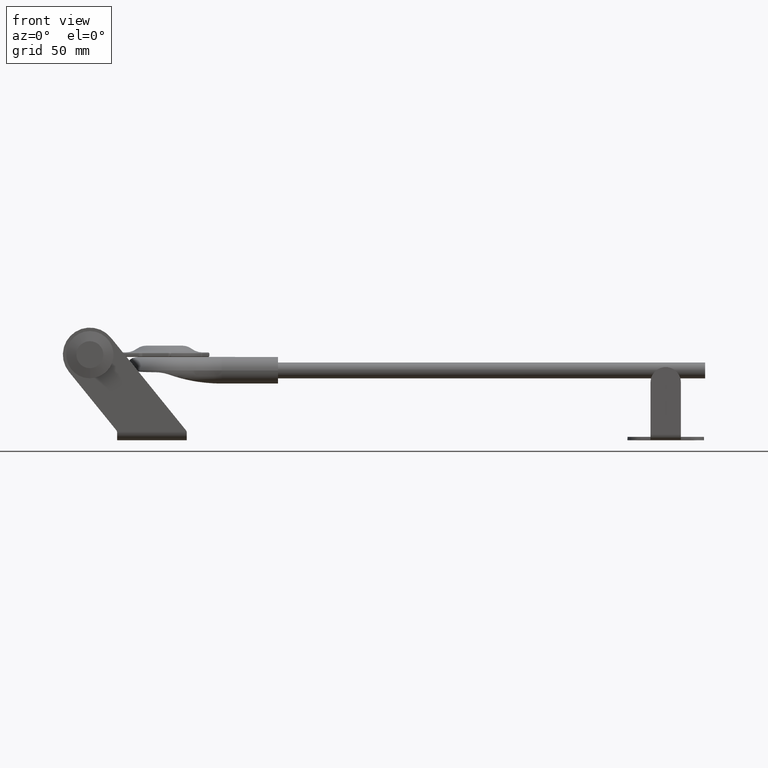
[diagram: clean part render]
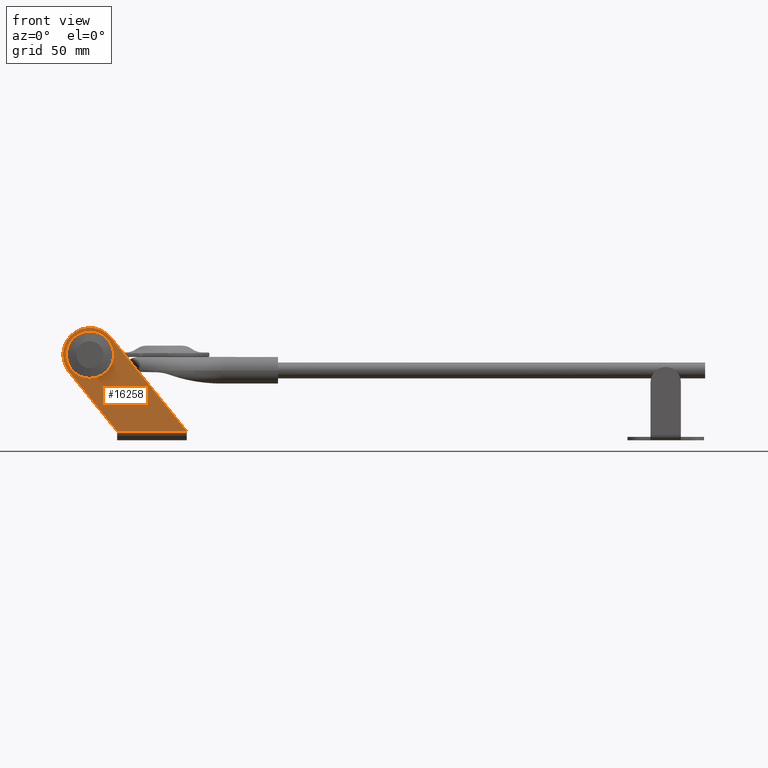
[diagram: same view with one face highlighted and labeled with its STEP entity id]
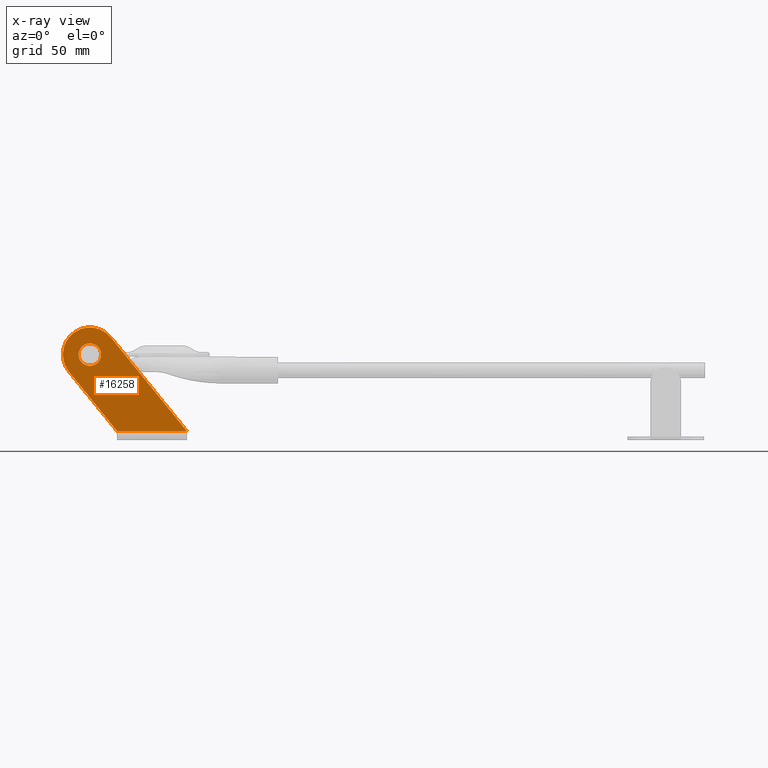
[diagram: x-ray of the same camera — body ghosted, the highlighted face saturated]
A machine part, front view. The second image highlights one B-rep face of the part: STEP entity #16258.
The next image is the same camera in x-ray: the body ghosted, the highlighted face saturated — about 0% of this face is hidden behind the body in this view.
In plain terms, the highlighted planar face has unit normal (0, -1, -0).
Its self-contained STEP definition (entity closure, byte-faithful):
#504 = VERTEX_POINT ( 'NONE', #11191 ) ;
#929 = EDGE_CURVE ( 'NONE', #5048, #3954, #19332, .T. ) ;
#931 = EDGE_CURVE ( 'NONE', #18289, #504, #9436, .T. ) ;
#945 = CARTESIAN_POINT ( 'NONE',  ( -15.49999999999999822, -62.50000000000000000, 38.00000000000002842 ) ) ;
#1194 = DIRECTION ( 'NONE',  ( 0.000000000000000000, 0.000000000000000000, -1.000000000000000000 ) ) ;
#1441 = EDGE_CURVE ( 'NONE', #20651, #5048, #3483, .T. ) ;
#2329 = CARTESIAN_POINT ( 'NONE',  ( -3.837952914577927643, -62.49999999999999289, 4.550566963569722567 ) ) ;
#2459 = DIRECTION ( 'NONE',  ( 0.000000000000000000, 1.000000000000000000, 0.000000000000000000 ) ) ;
#2951 = CARTESIAN_POINT ( 'NONE',  ( -24.82287291991888978, -62.50000000000000000, 30.44460189539674388 ) ) ;
#3204 = CARTESIAN_POINT ( 'NONE',  ( 29.45661156635037159, -62.49999999999999289, 1.585667792195645021 ) ) ;
#3483 = LINE ( 'NONE', #13039, #15651 ) ;
#3954 = VERTEX_POINT ( 'NONE', #22609 ) ;
#4119 = AXIS2_PLACEMENT_3D ( 'NONE', #19266, #23151, #22984 ) ;
#4284 = VECTOR ( 'NONE', #7341, 1000.000000000000000 ) ;
#4885 = DIRECTION ( 'NONE',  ( -0.6296165087169413033, -8.984781398739855076E-17, 0.7769060766599072965 ) ) ;
#4916 = VECTOR ( 'NONE', #4885, 1000.000000000000000 ) ;
#5048 = VERTEX_POINT ( 'NONE', #2329 ) ;
#5429 = CARTESIAN_POINT ( 'NONE',  ( 27.50000000000000000, -62.49999999999999289, 3.999999999999985345 ) ) ;
#5810 = CIRCLE ( 'NONE', #6326, 5.000000000000004441 ) ;
#5892 = CARTESIAN_POINT ( 'NONE',  ( 27.37023860084766014, -62.49999999999999289, 3.999999999999985345 ) ) ;
#6205 = DIRECTION ( 'NONE',  ( 0.000000000000000000, 0.000000000000000000, 1.000000000000000000 ) ) ;
#6326 = AXIS2_PLACEMENT_3D ( 'NONE', #16732, #2459, #6205 ) ;
#6562 = CARTESIAN_POINT ( 'NONE',  ( 27.05381215331981437, -62.49999999999999289, 4.550566963569719015 ) ) ;
#7341 = DIRECTION ( 'NONE',  ( -1.000000000000000000, -0.000000000000000000, -0.000000000000000000 ) ) ;
#7674 = ORIENTED_EDGE ( 'NONE', *, *, #14007, .T. ) ;
#7983 = DIRECTION ( 'NONE',  ( 0.000000000000000000, 1.156482317317871478E-16, -1.000000000000000000 ) ) ;
#8481 = EDGE_LOOP ( 'NONE', ( #14508, #11350, #14825, #7674, #21877, #15404 ) ) ;
#8560 = VERTEX_POINT ( 'NONE', #17377 ) ;
#8721 = DIRECTION ( 'NONE',  ( -0.000000000000000000, 1.000000000000000000, 1.156482317317871478E-16 ) ) ;
#8759 = VERTEX_POINT ( 'NONE', #5892 ) ;
#8918 = EDGE_CURVE ( 'NONE', #8759, #18289, #9055, .T. ) ;
#9055 = CIRCLE ( 'NONE', #4119, 2.000000000000000000 ) ;
#9436 = LINE ( 'NONE', #3204, #4916 ) ;
#9966 = PLANE ( 'NONE',  #20748 ) ;
#10435 = DIRECTION ( 'NONE',  ( 5.204170427930421283E-15, 0.000000000000000000, -1.000000000000000000 ) ) ;
#11191 = CARTESIAN_POINT ( 'NONE',  ( -6.177127080081098676, -62.50000000000000000, 45.55539810460332006 ) ) ;
#11350 = ORIENTED_EDGE ( 'NONE', *, *, #8918, .T. ) ;
#11369 = AXIS2_PLACEMENT_3D ( 'NONE', #15815, #8721, #10435 ) ;
#11744 = DIRECTION ( 'NONE',  ( 0.000000000000000000, -1.000000000000000000, -1.156482317317871478E-16 ) ) ;
#11939 = DIRECTION ( 'NONE',  ( 0.000000000000000000, -1.000000000000000000, -1.156482317317871478E-16 ) ) ;
#12056 = EDGE_LOOP ( 'NONE', ( #23338 ) ) ;
#12777 = EDGE_CURVE ( 'NONE', #8560, #8560, #5810, .T. ) ;
#13023 = LINE ( 'NONE', #5429, #4284 ) ;
#13039 = CARTESIAN_POINT ( 'NONE',  ( 10.81086572651259203, -62.49999999999999289, -13.52512841701095070 ) ) ;
#14007 = EDGE_CURVE ( 'NONE', #504, #20651, #20670, .T. ) ;
#14508 = ORIENTED_EDGE ( 'NONE', *, *, #22146, .F. ) ;
#14825 = ORIENTED_EDGE ( 'NONE', *, *, #931, .T. ) ;
#15404 = ORIENTED_EDGE ( 'NONE', *, *, #929, .T. ) ;
#15651 = VECTOR ( 'NONE', #20585, 1000.000000000000114 ) ;
#15815 = CARTESIAN_POINT ( 'NONE',  ( -5.391765067897742902, -62.49999999999999289, 3.291333946135840183 ) ) ;
#16258 = ADVANCED_FACE ( 'NONE', ( #21462, #17123 ), #9966, .T. ) ;
#16527 = AXIS2_PLACEMENT_3D ( 'NONE', #945, #11939, #1194 ) ;
#16732 = CARTESIAN_POINT ( 'NONE',  ( -15.49999999999999822, -62.50000000000000000, 37.99999999999998579 ) ) ;
#17123 = FACE_OUTER_BOUND ( 'NONE', #8481, .T. ) ;
#17377 = CARTESIAN_POINT ( 'NONE',  ( -15.49999999999999822, -62.50000000000000000, 42.99999999999999289 ) ) ;
#18289 = VERTEX_POINT ( 'NONE', #6562 ) ;
#18870 = CARTESIAN_POINT ( 'NONE',  ( 27.50000000000000000, -62.49999999999999289, -1.387778780781445676E-14 ) ) ;
#19266 = CARTESIAN_POINT ( 'NONE',  ( 25.50000000000000355, -62.49999999999999289, 3.291333946135835742 ) ) ;
#19332 = CIRCLE ( 'NONE', #11369, 2.000000000000000000 ) ;
#20585 = DIRECTION ( 'NONE',  ( 0.6296165087169414143, 8.984781398739853844E-17, -0.7769060766599071854 ) ) ;
#20651 = VERTEX_POINT ( 'NONE', #2951 ) ;
#20670 = CIRCLE ( 'NONE', #16527, 12.00000000000000355 ) ;
#20748 = AXIS2_PLACEMENT_3D ( 'NONE', #18870, #11744, #7983 ) ;
#21462 = FACE_BOUND ( 'NONE', #12056, .T. ) ;
#21877 = ORIENTED_EDGE ( 'NONE', *, *, #1441, .T. ) ;
#22146 = EDGE_CURVE ( 'NONE', #8759, #3954, #13023, .T. ) ;
#22609 = CARTESIAN_POINT ( 'NONE',  ( -3.521526467050079656, -62.49999999999999289, 3.999999999999985345 ) ) ;
#22984 = DIRECTION ( 'NONE',  ( 0.000000000000000000, 0.000000000000000000, -1.000000000000000000 ) ) ;
#23151 = DIRECTION ( 'NONE',  ( 0.000000000000000000, -1.000000000000000000, -1.156482317317871478E-16 ) ) ;
#23338 = ORIENTED_EDGE ( 'NONE', *, *, #12777, .T. ) ;